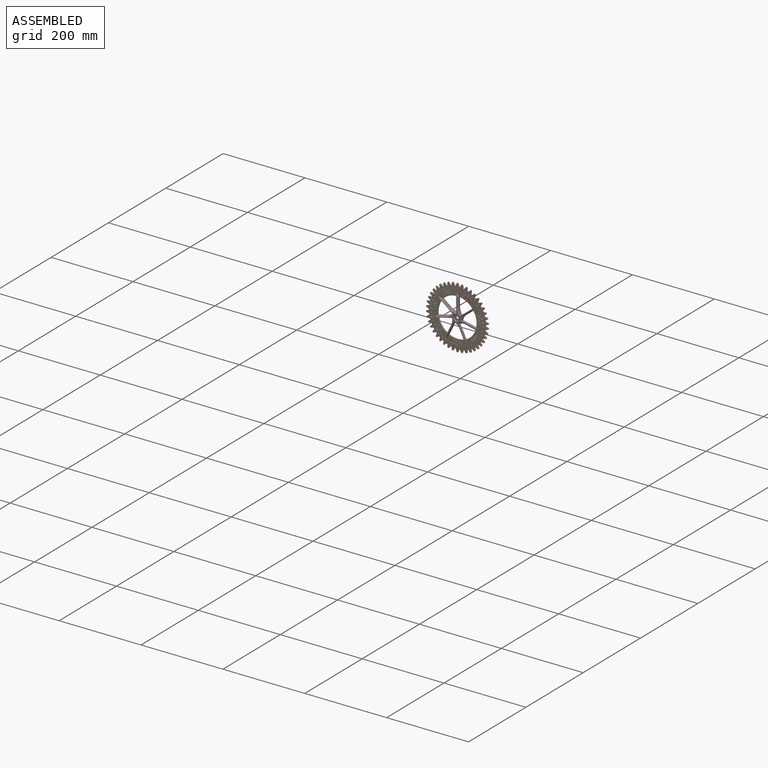
[diagram: assembled view]
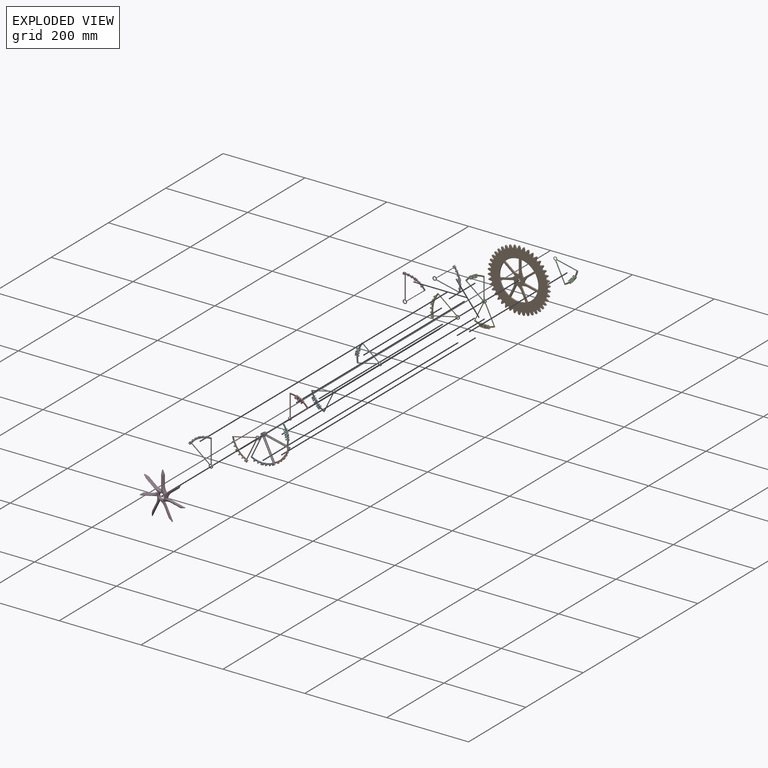
[diagram: exploded view]
GUIDED TOUR — MATED ASSEMBLY (Onshape document fc287e7eb0d89cf770b1b55a, AutoMate assembly fc287e7eb0d89cf770b1b55a_567d57d1a9eed2871b4e9d9c_7820a510bcdfb73ece721cb8_default)

This assembly has 16 components, labeled P0..P15 below (a component is one placed occurrence of a part; the same part can appear more than once), held together by 46 mates. A mate is a constraint between two components; its type names the relative motion it leaves free:
  CYLINDRICAL — leaves both rotation about and translation along the listed axis free,
  PLANAR — leaves sliding in the plane through the listed point (normal = the listed direction) and rotation about that normal free.
Axis/direction vectors are unit vectors and 'through' points are millimeter coordinates, both in the assembly's world frame.

MATES
  1. PLANAR "Planar 7": P0 <-> P1, direction (0.000, 1.000, 0.000) through (8.85, -20.75, -35.72) mm
  2. PLANAR "Planar 15": P7 <-> P1, direction (0.000, 1.000, 0.000) through (26.37, -20.75, 41.33) mm
  3. PLANAR "Planar 8": P0 <-> P1, direction (0.901, 0.000, 0.434) through (22.75, -21.55, -23.57) mm
  4. PLANAR "Planar 4": P14 <-> P1, direction (-0.624, 0.000, 0.782) through (34.08, -21.55, 26.15) mm
  5. PLANAR "Planar 21": P12 <-> P1, direction (0.000, 1.000, 0.000) through (-1.74, -20.75, -47.17) mm
  6. CYLINDRICAL "Cylindrical 4": P0 <-> P1, axis (0.000, -1.000, 0.000) through (8.58, -22.34, 5.81) mm
  7. PLANAR "Planar 29": P10 <-> P1, direction (-0.623, 0.000, -0.782) through (-15.39, -21.55, 24.89) mm
  8. PLANAR "Planar 32": P1 <-> P3, direction (0.901, 0.000, 0.434) through (21.68, -22.34, -21.36) mm
  9. PLANAR "Planar 26": P5 <-> P1, direction (0.000, 1.000, 0.000) through (-46.24, -20.75, 21.76) mm
  10. PLANAR "Planar 17": P13 <-> P1, direction (0.000, 1.000, 0.000) through (60.84, -20.75, 19.31) mm
  11. PLANAR "Planar 13": P9 <-> P1, direction (0.000, 1.000, 0.000) through (-23.71, -20.75, -20.30) mm
  12. PLANAR "Planar 5": P15 <-> P1, direction (0.000, 1.000, 0.000) through (44.83, -20.75, -46.52) mm
  13. PLANAR "Planar 16": P8 <-> P1, direction (0.000, 1.000, 0.000) through (-22.81, -20.75, -18.52) mm
  14. PLANAR "Planar 20": P2 <-> P1, direction (0.222, 0.000, 0.975) through (38.46, -21.55, -1.00) mm
  15. CYLINDRICAL "Cylindrical 14": P10 <-> P1, axis (0.000, -1.000, 0.000) through (8.58, -21.55, 5.81) mm
  16. CYLINDRICAL "Cylindrical 5": P6 <-> P1, axis (0.000, -1.000, 0.000) through (8.58, -21.55, 5.81) mm
  17. PLANAR "Planar 11": P4 <-> P1, direction (0.000, 1.000, 0.000) through (-53.99, -20.75, 17.59) mm
  18. CYLINDRICAL "Cylindrical 11": P12 <-> P1, axis (0.000, -1.000, 0.000) through (8.58, -21.55, 5.81) mm
  19. CYLINDRICAL "Cylindrical 7": P9 <-> P1, axis (0.000, -1.000, 0.000) through (8.58, -21.55, 5.81) mm
  20. PLANAR "Planar 18": P13 <-> P1, direction (-0.624, 0.000, 0.782) through (32.54, -21.55, 24.92) mm
  21. PLANAR "Planar 22": P12 <-> P1, direction (0.901, 0.000, 0.434) through (21.89, -21.55, -21.79) mm
  22. PLANAR "Planar 10": P6 <-> P1, direction (-0.623, 0.000, -0.782) through (-16.93, -21.55, 26.12) mm
  23. PLANAR "Planar 28": P10 <-> P1, direction (0.000, 1.000, 0.000) through (-16.75, -20.75, 53.47) mm
  24. CYLINDRICAL "Cylindrical 3": P15 <-> P1, axis (0.000, -1.000, 0.000) through (8.58, -21.55, 5.81) mm
  25. CYLINDRICAL "Cylindrical 9": P13 <-> P1, axis (0.000, -1.000, 0.000) through (8.58, -21.55, 5.81) mm
  26. CYLINDRICAL "Cylindrical 10": P2 <-> P1, axis (0.000, -1.000, 0.000) through (8.58, -22.34, 5.81) mm
  27. PLANAR "Planar 19": P2 <-> P1, direction (0.000, 1.000, 0.000) through (39.22, -20.75, -19.43) mm
  28. PLANAR "Planar 3": P14 <-> P1, direction (0.000, 1.000, 0.000) through (71.98, -20.75, 11.63) mm
  29. PLANAR "Planar 24": P7 <-> P1, direction (-1.000, 0.000, 0.000) through (8.58, -21.55, 36.39) mm
  30. PLANAR "Planar 25": P8 <-> P1, direction (0.901, 0.000, -0.433) through (-4.69, -21.55, -21.80) mm
  31. CYLINDRICAL "Cylindrical 12": P7 <-> P1, axis (0.000, -1.000, 0.000) through (8.58, -21.55, 5.81) mm
  32. PLANAR "Planar 2": P11 <-> P1, direction (-1.000, 0.000, 0.000) through (8.58, -21.55, 38.43) mm
  33. PLANAR "Planar 1": P11 <-> P1, direction (0.000, 1.000, 0.000) through (28.73, -20.75, 66.49) mm
  34. PLANAR "Planar 9": P6 <-> P1, direction (0.000, 1.000, 0.000) through (-37.61, -20.75, 44.61) mm
  35. PLANAR "Planar 14": P9 <-> P1, direction (0.901, 0.000, -0.433) through (-5.55, -21.55, -23.58) mm
  36. PLANAR "Planar 23": P7 <-> P1, direction (0.000, 1.000, 0.000) through (22.45, -20.75, 57.70) mm
  37. CYLINDRICAL "Cylindrical 13": P5 <-> P1, axis (0.000, -1.000, 0.000) through (8.58, -21.55, 5.81) mm
  38. CYLINDRICAL "Cylindrical 1": P11 <-> P1, axis (0.000, -1.000, 0.000) through (8.58, -21.55, 5.81) mm
  39. PLANAR "Planar 31": P1 <-> P3, direction (-0.624, 0.000, 0.782) through (32.16, -22.34, 24.62) mm
  40. PLANAR "Planar 12": P4 <-> P1, direction (0.223, 0.000, -0.975) through (-23.21, -21.55, -1.47) mm
  41. CYLINDRICAL "Cylindrical 2": P14 <-> P1, axis (0.000, -1.000, 0.000) through (8.58, -21.55, 5.81) mm
  42. PLANAR "Planar 30": P3 <-> P1, direction (0.000, 1.000, 0.000) through (8.95, -20.75, 5.56) mm
  43. CYLINDRICAL "Cylindrical 8": P8 <-> P1, axis (0.000, -1.000, 0.000) through (8.58, -22.34, 5.81) mm
  44. PLANAR "Planar 27": P5 <-> P1, direction (0.223, 0.000, -0.975) through (-21.28, -21.55, -1.03) mm
  45. CYLINDRICAL "Cylindrical 6": P4 <-> P1, axis (0.000, -1.000, 0.000) through (8.58, -22.34, 5.81) mm
  46. PLANAR "Planar 6": P15 <-> P1, direction (0.222, 0.000, 0.975) through (40.38, -21.55, -1.44) mm

ASSEMBLY ORDER
  1. P4 — the base component [order verified]
  2. P0 [order verified]
  3. P6 [order verified]
  4. P9 [order verified]
  5. P11 [order verified]
  6. P14 [order verified]
  7. P15 [order verified]
  8. P8 [order verified]
  9. P10 [order verified]
  10. P7 [order verified]
  11. P13 [order verified]
  12. P5 [order verified]
  13. P1 [order verified]
  14. P12 [order verified]
  15. P2 [order verified]
  16. P3 [order verified]
(P1, P2, P3, P6, P7, P8 verified with a relaxed clearance tolerance: the source model stores slight part interference there.)
Order-tag legend:
  [order verified] — this step's position reverses a verified removal order: the component was checked to insert without passing through the ones already placed.

Of the 16 components, 15 carry the full construction recipe — the FeatureScript program that regenerates the part's solid from scratch; the rest are supplied as boundary geometry only.
Because this assembly has more than 12 components, the tour below covers the 12 most significant ones individually (every recipe-attached component first, then the largest by part volume), in assembly order; the remaining 4 are summarized together in a grouped section at the end.
Each toured component is shown spotlighted twice — in the assembled view, then in the exploded view, where a leader line traces a displaced component back to its assembled socket (saturated green if recipe-attached, orange if geometry-only; every other component desaturated gray) — followed by its recipe or geometry summary and the mates that hold it.
NOTE — this tour is split across 2 documents so each fits a 32k-token context. This is document 1: the component sections continue in the remaining 1 document, each repeating the header above.
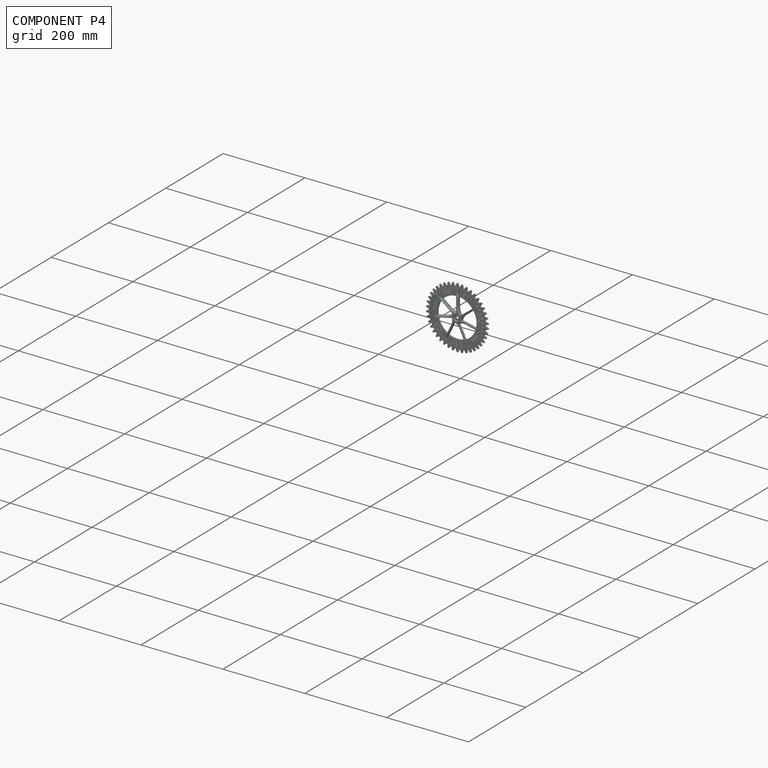
[diagram: component P4 — assembled]
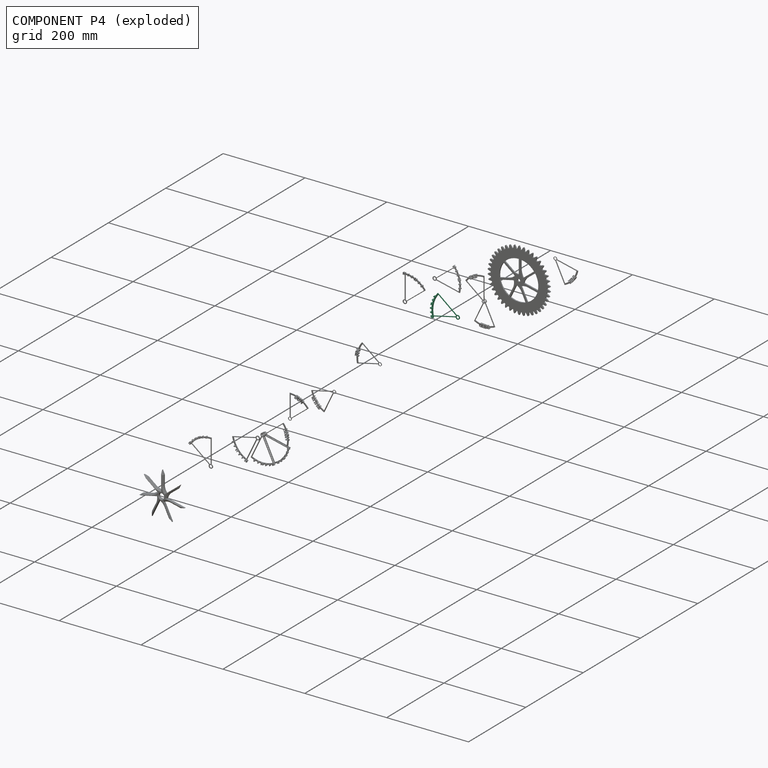
[diagram: component P4 — exploded]
COMPONENT P4 — same part as P0 (CADFS 00778292); its construction recipe is shown at P0.
Held by: PLANAR mate "Planar 11" to P1; PLANAR mate "Planar 12" to P1; CYLINDRICAL mate "Cylindrical 6" to P1.
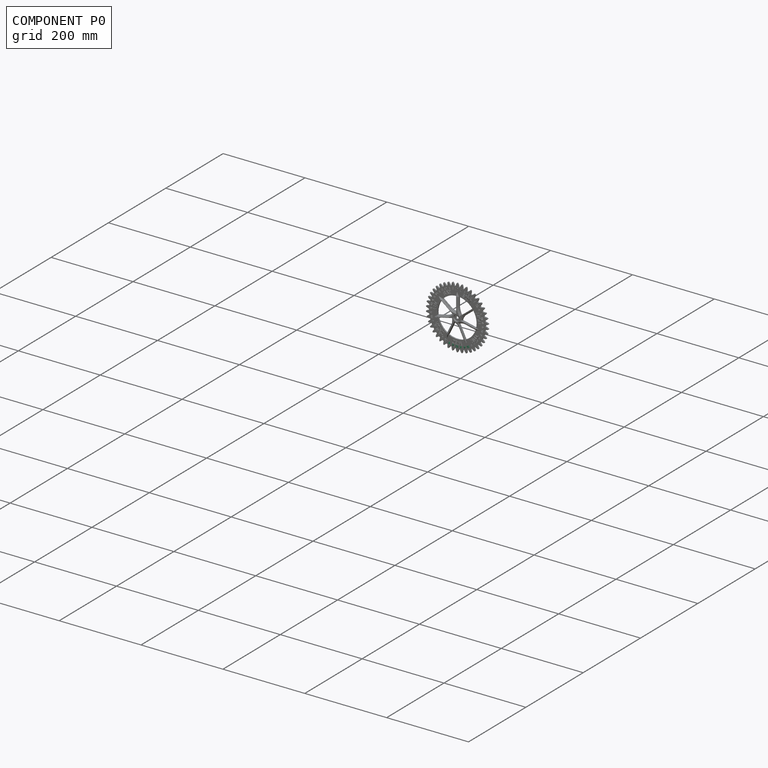
[diagram: component P0 — assembled]
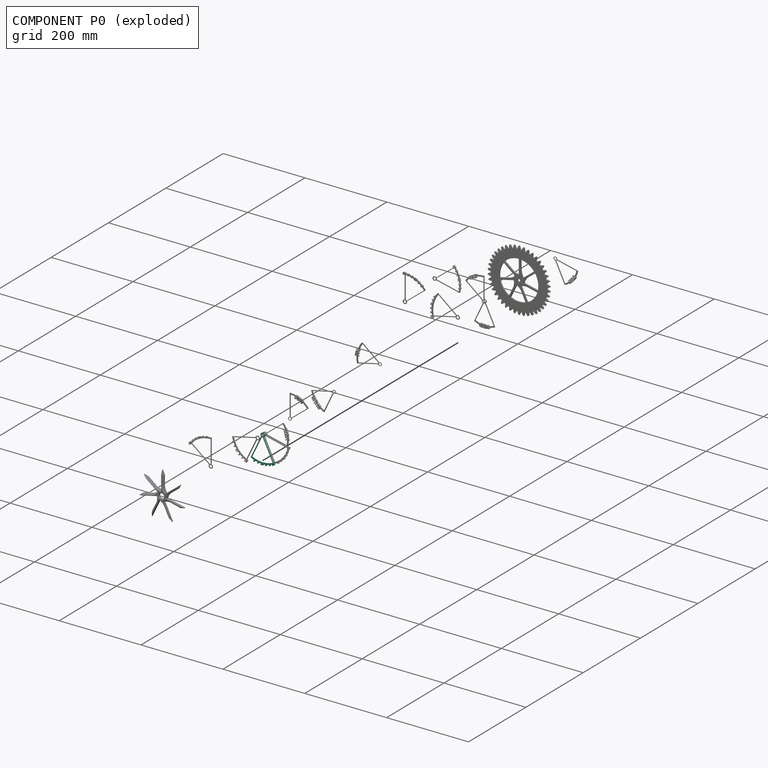
[diagram: component P0 — exploded]
COMPONENT P0 — recipe-attached (CADFS 00778292, mesh-verified: the recipe's output STEP matches this component's geometry to below the mesh-comparison resolution (tessellation chordal tolerance ~0.135 mm)).
Held by: PLANAR mate "Planar 7" to P1; PLANAR mate "Planar 8" to P1; CYLINDRICAL mate "Cylindrical 4" to P1.
Construction recipe (FeatureScript — the CAD program that rebuilds this solid; sketch coordinates are in the units given by the * unit suffixes, e.g. mm):

FeatureScript 1511;
import(path : "onshape/std/geometry.fs", version : "1511.0");
import(path : "onshape/std/common.fs", version : "1511.0");
const mm = millimeter;
const VERTEX = EntityType.VERTEX;
const EDGE = EntityType.EDGE;
const FACE = EntityType.FACE;
const BODY = EntityType.BODY;
function v(x, y){return vector(x, y);}
function OD(order){return orderDisambiguation(order);}
function OSD(set){return originalSetDisambiguation(set);}
function TD(topology){return topologyDisambiguation(topology);}
function TDD(query){return trueDependencyDisambiguation(query);}
function sQuery(a, b, c) {return sketchEntityQuery(a, b, c);}

annotation { "Feature Type Name" : "Feature", "Feature Type Description" : "" }
export const myFeature = defineFeature(function(context is Context, id is Id, definition is map)
    precondition{}
    {
        {
            var Q0;
            Q0=qCreatedBy(makeId("Front.planeOp"),FACE);
            var sketch = newSketch(context, id + "F0", { "sketchPlane" : qUnion([Q0])});
            skCircle(sketch, "E0", {"center": v(0, 0) * mm, "radius": 68.7 * mm, "construction": true});
            skCircle(sketch, "E1", {"center": v(0, 0) * mm, "radius": 65.53 * mm, "construction": true});
            skCircle(sketch, "E2", {"center": v(0, 0) * mm, "radius": 59.18 * mm, "construction": true});
            skLineSegment(sketch, "E3", {"start": v(0, 0) * mm, "end": v(0, 60.77) * mm, "construction": true});
            skLineSegment(sketch, "E4", {"start": v(0, 0) * mm, "end": v(9.77, 64.8) * mm, "construction": true});
            skLineSegment(sketch, "E5", {"start": v(0, 0) * mm, "end": v(19.31, 62.62) * mm, "construction": true});
            skLineSegment(sketch, "E6", {"start": v(0, 0) * mm, "end": v(28.43, 59.04) * mm, "construction": true});
            skLineSegment(sketch, "E7", {"start": v(0, 0) * mm, "end": v(36.91, 54.15) * mm, "construction": true});
            skLineSegment(sketch, "E8", {"start": v(0, 0) * mm, "end": v(44.57, 48.04) * mm, "construction": true});
            skText(sketch, "E9", { "text": "12", "fontName": "RobotoSlab-Bold.ttf"});
            skText(sketch, "E10", { "text": "4", "fontName": "RobotoSlab-Bold.ttf"});
            skText(sketch, "E11", { "text": "8", "fontName": "RobotoSlab-Bold.ttf"});
            skText(sketch, "E12", { "text": "12", "fontName": "RobotoSlab-Bold.ttf"});
            skText(sketch, "E13", { "text": "4", "fontName": "RobotoSlab-Bold.ttf"});
            skText(sketch, "E14", { "text": "8", "fontName": "RobotoSlab-Bold.ttf"});
            const initialGuessF0  = {"E9": [-0.00339, 0.06077, 1, 0, 0.00476], "E10": [0.0071, 0.06037, 0.98883, -0.14902, 0.00478], "E11": [0.01607, 0.05862, 0.95559, -0.2947, 0.00478], "E12": [0.0233, 0.05622, 0.901, -0.43382, 0.00478], "E13": [0.03258, 0.05132, 0.8263, -0.56324, 0.00478], "E14": [0.03991, 0.04585, 0.73314, -0.68008, 0.00478]};
            skSetInitialGuess(sketch, initialGuessF0);
            skSolve(sketch);
        }
        {
            var Q0;
            Q0 = qSketchRegion(id + "F0", true);
            extrude(context, id + "F1", {"entities" : qUnion([Q0]), "depth" : 4.76 * mm, "offsetDistance" : 25.4 * mm});
        }
        {
            var Q0;
            Q0=qCreatedBy(makeId("Front.planeOp"),FACE);
            var sketch = newSketch(context, id + "F2", { "sketchPlane" : qUnion([Q0])});
            skCircle(sketch, "E15", {"center": v(0, 0) * mm, "radius": 4.92 * mm});
            skCircle(sketch, "E16", {"center": v(0, 0) * mm, "radius": 63.5 * mm, "construction": true});
            skLineSegment(sketch, "E17", {"start": v(0, 0) * mm, "end": v(0, 60.3) * mm, "construction": true});
            skLineSegment(sketch, "E18", {"start": v(0, 0) * mm, "end": v(49.64, 39.6) * mm, "construction": true});
            skLineSegment(sketch, "E19", {"start": v(1.59, 63.48) * mm, "end": v(1.59, 4.66) * mm});
            skLineSegment(sketch, "E20", {"start": v(4.63, 1.66) * mm, "end": v(50.61, 38.35) * mm, "construction": true});
            skLineSegment(sketch, "E21", {"start": v(4.63, 1.66) * mm, "end": v(50.61, 38.35) * mm});
            skLineSegment(sketch, "E22", {"start": v(3.85, 3.07) * mm, "end": v(49.64, 39.6) * mm});
            skArc(sketch, "E23", {"start": v(47.16, 37.62) * mm, "mid": v(26.93, 54.1) * mm, "end": v(1.59, 60.3) * mm});
            skArc(sketch, "E24", {"start": v(50.61, 38.35) * mm, "mid": v(28.34, 57.02) * mm, "end": v(0, 63.5) * mm});
            skArc(sketch, "E25", {"start": v(0, 63.5) * mm, "mid": v(-0.97, 63.5) * mm, "end": v(-1.93, 63.47) * mm});
            skLineSegment(sketch, "E26", {"start": v(-1.93, 63.47) * mm, "end": v(-1.99, 60.3) * mm});
            skLineSegment(sketch, "E27", {"start": v(0, 4.92) * mm, "end": v(0, 60.3) * mm});
            skLineSegment(sketch, "E28", {"start": v(-1.99, 60.3) * mm, "end": v(0, 60.3) * mm});
            skSolve(sketch);
        }
        {
            var Q0;
            {var subQ5=sQuery(id+"F2.wireOp",EDGE,"E21");Q0=makeQuery(id+"F2.imprint","IMPRINT",FACE,{"disambiguationData":[TD([[makeQuery(id+"F2.imprint","IMPRINT",EDGE,{"derivedFrom":subQ5}),1.0]])]});}
            var Q1;
            {var subQ0=sQuery(id+"F2.wireOp",EDGE,"E15");var subQ1=makeQuery(id+"F2.imprint","INTERSECT",VERTEX,{"derivedFrom":[subQ0,sQuery(id+"F2.wireOp",EDGE,"E21")]});Q1=makeQuery(id+"F2.imprint","IMPRINT",FACE,{"disambiguationData":[TD([[makeQuery(id+"F2.imprint","IMPRINT",EDGE,{"disambiguationData":[TD([[subQ1,-1.0]])],"derivedFrom":subQ0}),1.0]])]});}
            extrude(context, id + "F3", {"entities" : qUnion([Q0, Q1]), "operationType" : NewBodyOperationType.ADD, "depth" : 1.59 * mm, "offsetDistance" : 25.4 * mm});
        }
        {
            var Q0;
            {var subQ0=sQuery(id+"F2.wireOp",EDGE,"E21");var subQ1=sQuery(id+"F2.wireOp",EDGE,"E19");var subQ2=sQuery(id+"F2.wireOp",EDGE,"E15");var subQ3=sQuery(id+"F2.wireOp",EDGE,"E27");var subQ4=sQuery(id+"F2.wireOp",EDGE,"E22");var subQ5=sQuery(id+"F2.wireOp",EDGE,"E25");var subQ6=sQuery(id+"F2.wireOp",EDGE,"E24");var subQ7=sQuery(id+"F2.wireOp",EDGE,"E23");var subQ8=sQuery(id+"F2.wireOp",EDGE,"E26");var subQ9=sQuery(id+"F2.wireOp",EDGE,"E28");Q0=makeQuery(id+"F3.boolean.opBoolean","SPLIT",FACE,{"disambiguationData":[TD([makeQuery(id+"F1.opExtrude","SWEPT_FACE",FACE,{"disambiguationData":[OSD([sQuery(id+"F0.wireOp",EDGE,"E9.sketch_text.stroke-5")])]})])],"derivedFrom":makeQuery(id+"F3.opExtrude","CAP_FACE",FACE,{"disambiguationData":[OSD([subQ2,subQ1,subQ0,subQ4,subQ7,subQ6,subQ5,subQ8,subQ3,subQ9])],"isStart":false})});}
            var sketch = newSketch(context, id + "F4", { "sketchPlane" : qUnion([Q0])});
            skPoint(sketch, "E29", {"position": v(0, 0) * mm});
            skPoint(sketch, "E30", {"position": v(0, 1.66) * mm});
            skSolve(sketch);
        }
        {
            var Q0;
            Q0=sQuery(id+"F4.wireOp",VERTEX,"E29");
            var Q1;
            Q1=makeQuery(id+"F1.opExtrude","SWEPT_BODY",BODY,{"disambiguationData":[OSD([sQuery(id+"F0.wireOp",EDGE,"E9.sketch_text.stroke-0"),sQuery(id+"F0.wireOp",EDGE,"E9.sketch_text.stroke-1"),sQuery(id+"F0.wireOp",EDGE,"E9.sketch_text.stroke-2"),sQuery(id+"F0.wireOp",EDGE,"E9.sketch_text.stroke-3"),sQuery(id+"F0.wireOp",EDGE,"E9.sketch_text.stroke-4"),sQuery(id+"F0.wireOp",EDGE,"E9.sketch_text.stroke-5"),sQuery(id+"F0.wireOp",EDGE,"E9.sketch_text.stroke-6"),sQuery(id+"F0.wireOp",EDGE,"E9.sketch_text.stroke-7"),sQuery(id+"F0.wireOp",EDGE,"E9.sketch_text.stroke-8"),sQuery(id+"F0.wireOp",EDGE,"E9.sketch_text.stroke-9")])]});
            hole(context, id + "F5", {"style" : HoleStyle.SIMPLE, "endStyle" : HoleEndStyle.THROUGH, "holeDiameter" : 6.35 * mm, "majorDiameter" : 6.35 * mm, "isTappedThrough" : true, "tappedDepth" : 12.7 * mm, "tapClearance" : 3, "locations" : qUnion([Q0]), "scope" : qUnion([Q1])});
        }
    });
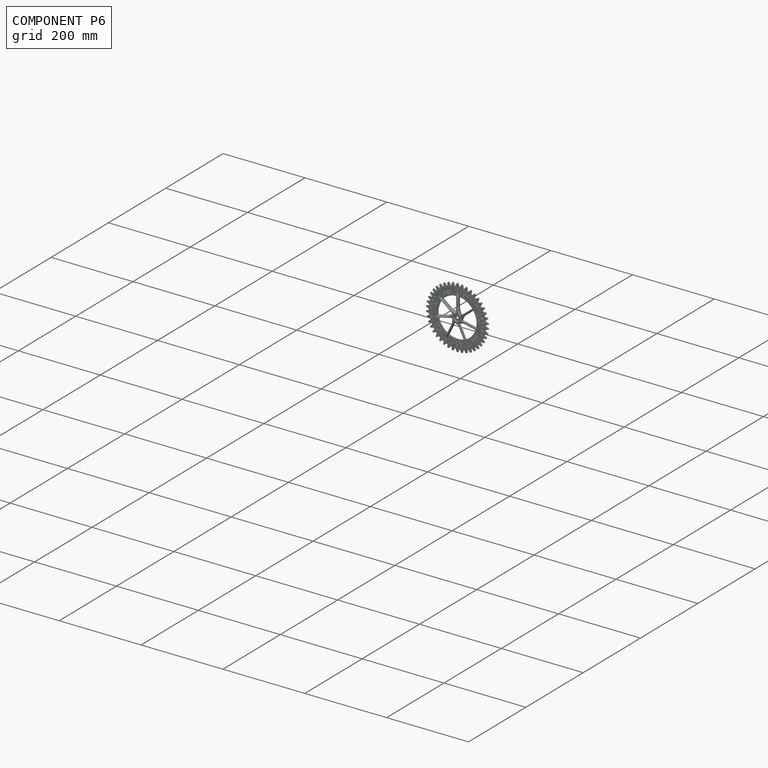
[diagram: component P6 — assembled]
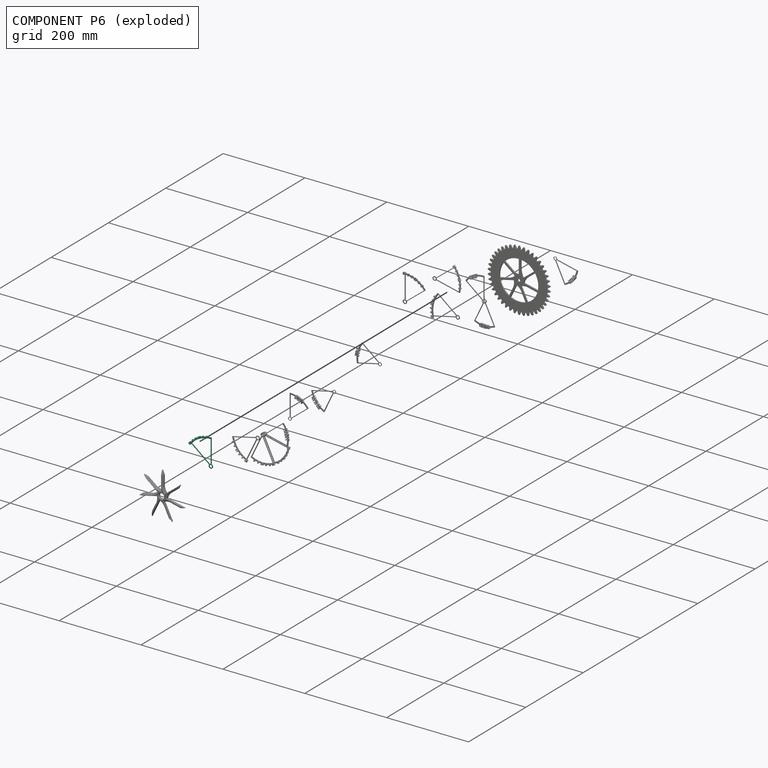
[diagram: component P6 — exploded]
COMPONENT P6 — same part as P0 (CADFS 00778292); its construction recipe is shown at P0.
Held by: CYLINDRICAL mate "Cylindrical 5" to P1; PLANAR mate "Planar 10" to P1; PLANAR mate "Planar 9" to P1.
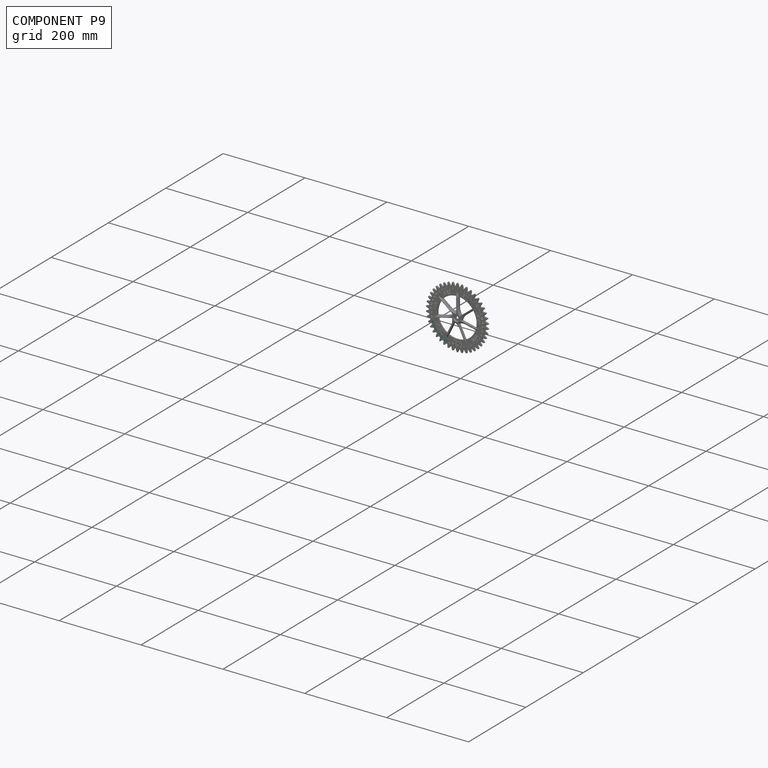
[diagram: component P9 — assembled]
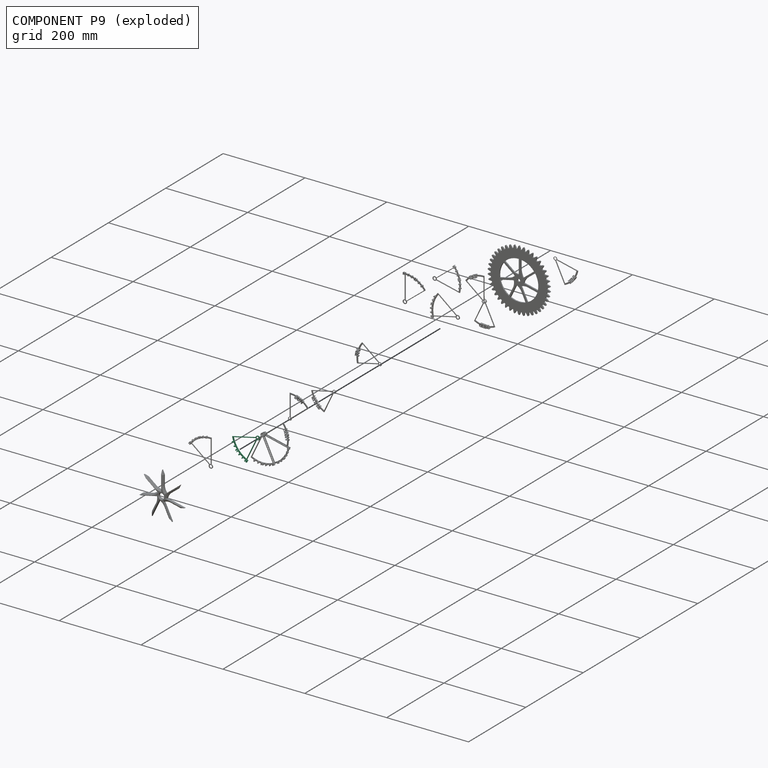
[diagram: component P9 — exploded]
COMPONENT P9 — same part as P0 (CADFS 00778292); its construction recipe is shown at P0.
Held by: PLANAR mate "Planar 13" to P1; CYLINDRICAL mate "Cylindrical 7" to P1; PLANAR mate "Planar 14" to P1.
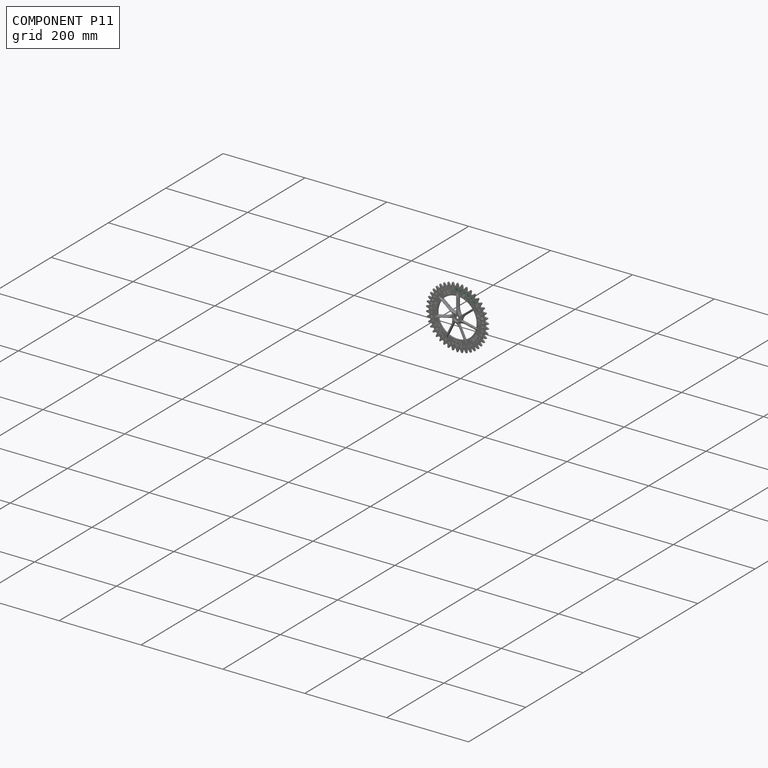
[diagram: component P11 — assembled]
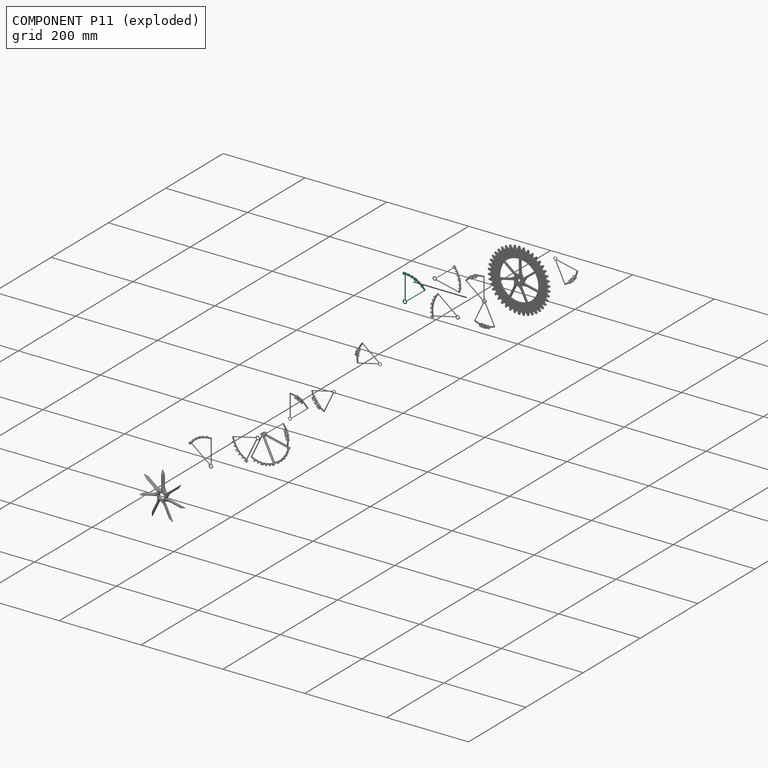
[diagram: component P11 — exploded]
COMPONENT P11 — same part as P0 (CADFS 00778292); its construction recipe is shown at P0.
Held by: PLANAR mate "Planar 2" to P1; PLANAR mate "Planar 1" to P1; CYLINDRICAL mate "Cylindrical 1" to P1.
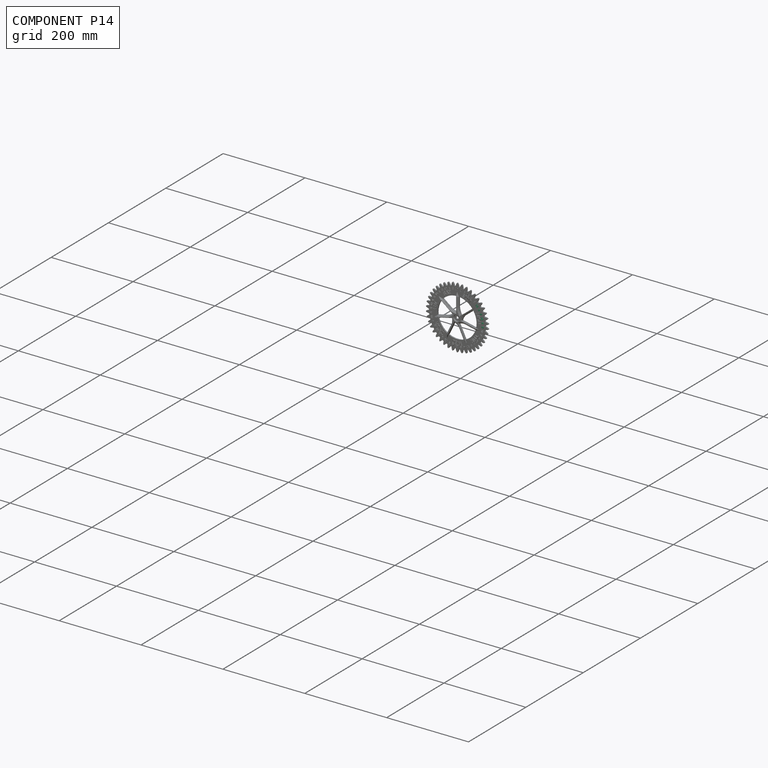
[diagram: component P14 — assembled]
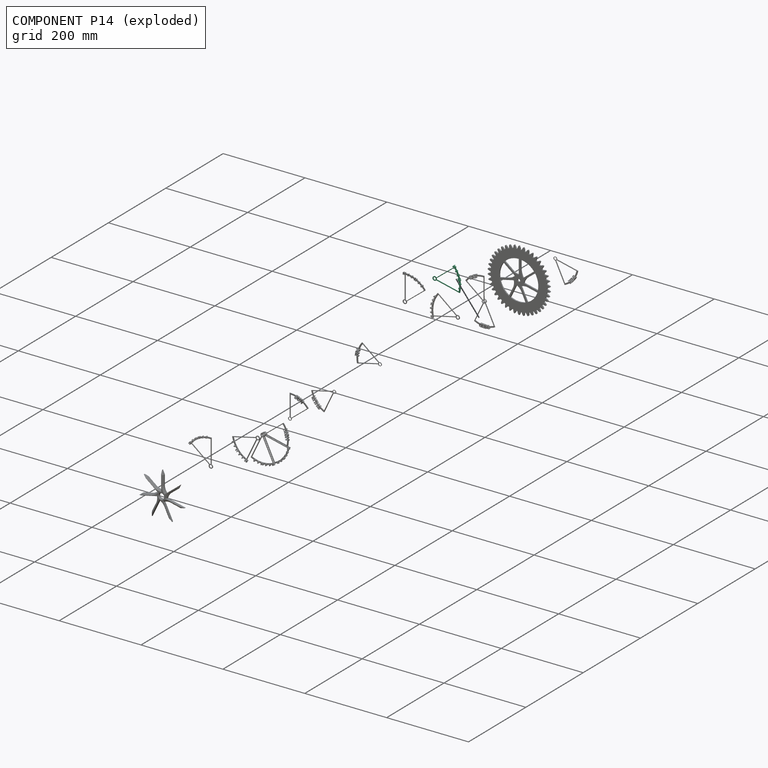
[diagram: component P14 — exploded]
COMPONENT P14 — same part as P0 (CADFS 00778292); its construction recipe is shown at P0.
Held by: PLANAR mate "Planar 4" to P1; PLANAR mate "Planar 3" to P1; CYLINDRICAL mate "Cylindrical 2" to P1.
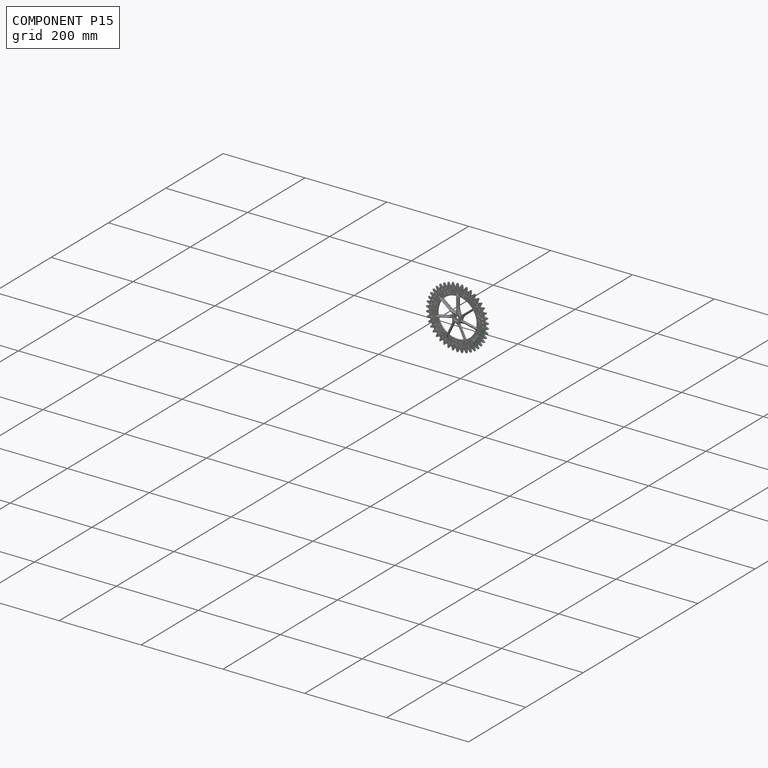
[diagram: component P15 — assembled]
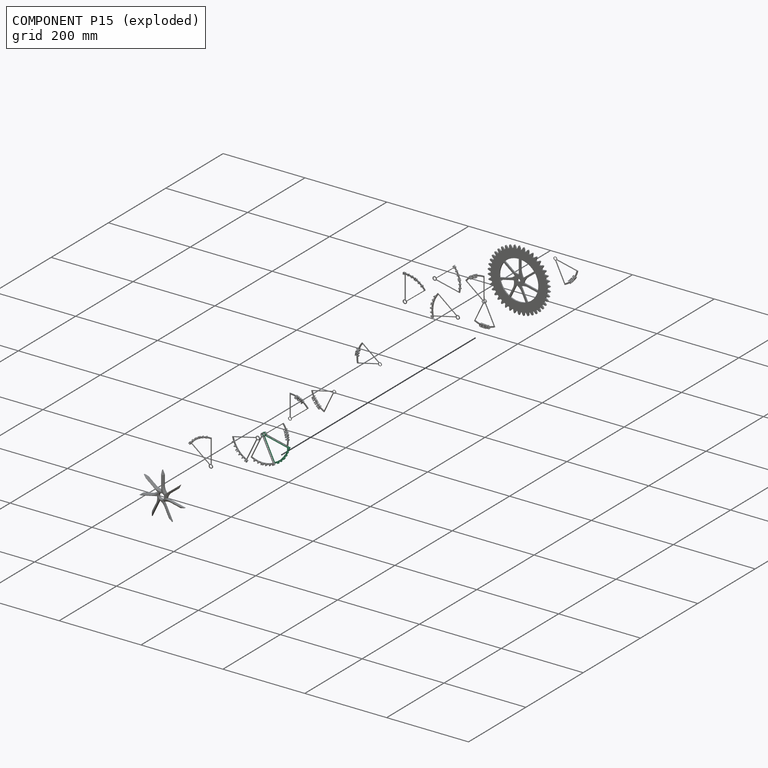
[diagram: component P15 — exploded]
COMPONENT P15 — same part as P0 (CADFS 00778292); its construction recipe is shown at P0.
Held by: PLANAR mate "Planar 5" to P1; CYLINDRICAL mate "Cylindrical 3" to P1; PLANAR mate "Planar 6" to P1.
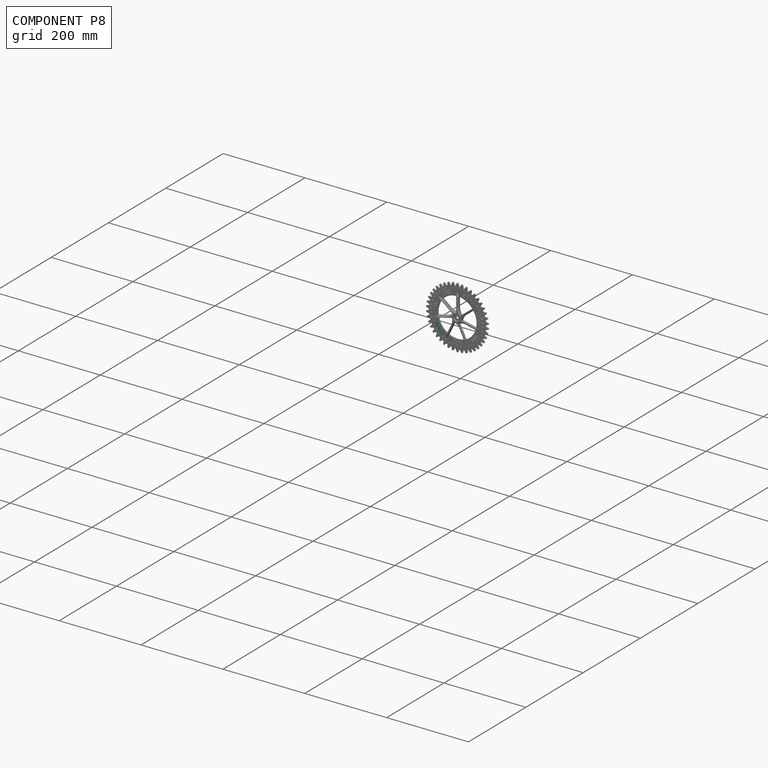
[diagram: component P8 — assembled]
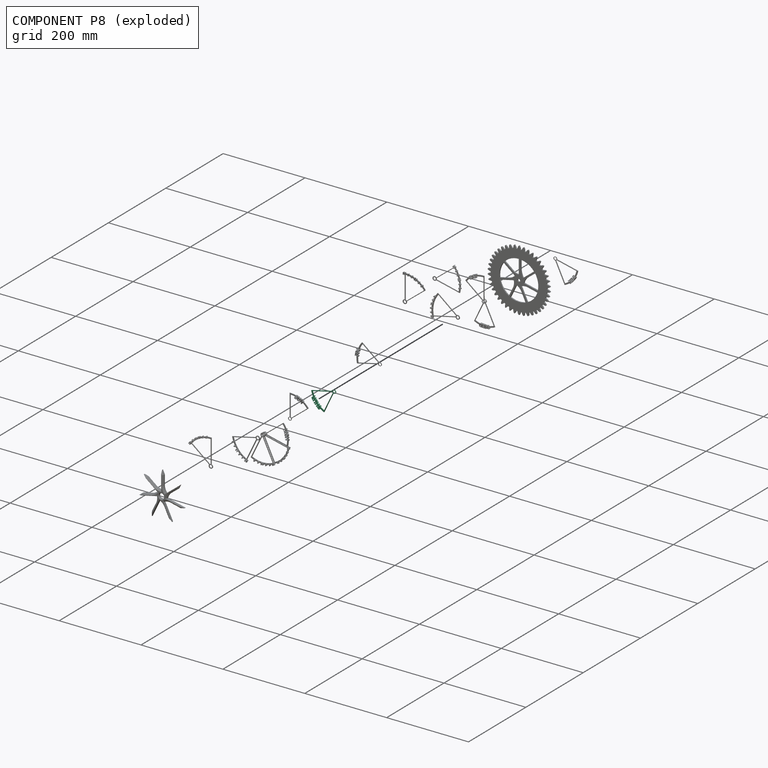
[diagram: component P8 — exploded]
COMPONENT P8 — recipe-attached (CADFS 00778299, mesh-verified: the recipe's output STEP matches this component's geometry to below the mesh-comparison resolution (tessellation chordal tolerance ~0.123 mm)).
Held by: PLANAR mate "Planar 16" to P1; PLANAR mate "Planar 25" to P1; CYLINDRICAL mate "Cylindrical 8" to P1.
Construction recipe (FeatureScript — the CAD program that rebuilds this solid; sketch coordinates are in the units given by the * unit suffixes, e.g. mm):

FeatureScript 1511;
import(path : "onshape/std/geometry.fs", version : "1511.0");
import(path : "onshape/std/common.fs", version : "1511.0");
const mm = millimeter;
const VERTEX = EntityType.VERTEX;
const EDGE = EntityType.EDGE;
const FACE = EntityType.FACE;
const BODY = EntityType.BODY;
function v(x, y){return vector(x, y);}
function OD(order){return orderDisambiguation(order);}
function OSD(set){return originalSetDisambiguation(set);}
function TD(topology){return topologyDisambiguation(topology);}
function TDD(query){return trueDependencyDisambiguation(query);}
function sQuery(a, b, c) {return sketchEntityQuery(a, b, c);}

annotation { "Feature Type Name" : "Feature", "Feature Type Description" : "" }
export const myFeature = defineFeature(function(context is Context, id is Id, definition is map)
    precondition{}
    {
        {
            var Q0;
            Q0=qCreatedBy(makeId("Front.planeOp"),FACE);
            var sketch = newSketch(context, id + "F0", { "sketchPlane" : qUnion([Q0])});
            skCircle(sketch, "E0", {"center": v(0, 0) * mm, "radius": 59.18 * mm, "construction": true});
            skCircle(sketch, "E1", {"center": v(0, 0) * mm, "radius": 50.8 * mm, "construction": true});
            skLineSegment(sketch, "E2", {"start": v(0, 0) * mm, "end": v(0, 59.18) * mm, "construction": true});
            skLineSegment(sketch, "E3", {"start": v(0, 0) * mm, "end": v(-25.65, -53.34) * mm, "construction": true});
            skLineSegment(sketch, "E4", {"start": v(0, 0) * mm, "end": v(-37.88, -45.47) * mm, "construction": true});
            skLineSegment(sketch, "E5", {"start": v(0, 0) * mm, "end": v(-43.5, -40.14) * mm, "construction": true});
            skLineSegment(sketch, "E6", {"start": v(0, 0) * mm, "end": v(-52.64, -27.05) * mm, "construction": true});
            skText(sketch, "E7", { "text": "T", "fontName": "RobotoSlab-Regular.ttf"});
            skText(sketch, "E8", { "text": "H", "fontName": "RobotoSlab-Regular.ttf"});
            skText(sketch, "E9", { "text": "R", "fontName": "RobotoSlab-Regular.ttf"});
            skLineSegment(sketch, "E10", {"start": v(0, 0) * mm, "end": v(-35.04, -47.84) * mm, "construction": true});
            skLineSegment(sketch, "E11", {"start": v(0, 0) * mm, "end": v(-54.42, -23.6) * mm, "construction": true});
            skLineSegment(sketch, "E12", {"start": v(0, 0) * mm, "end": v(-57.69, -13.21) * mm, "construction": true});
            skText(sketch, "E13", { "text": "U", "fontName": "RobotoSlab-Regular.ttf"});
            skLineSegment(sketch, "E14", {"start": v(0, 0) * mm, "end": v(-48.63, -33.73) * mm, "construction": true});
            const initialGuessF0  = {"E7": [-0.02996, -0.04174, -0.76832, 0.64007, 0.00794], "E8": [-0.0347, -0.03797, -0.6782, 0.73488, 0.00794], "E9": [-0.0438, -0.02689, -0.45715, 0.8894, 0.00794], "E13": [-0.03962, -0.03277, -0.57, 0.82165, 0.00795]};
            skSetInitialGuess(sketch, initialGuessF0);
            skSolve(sketch);
        }
        {
            var Q0;
            Q0=qSketchRegion(id+"F0",true);
            extrude(context, id + "F1", {"entities" : qUnion([Q0]), "depth" : 4.76 * mm, "offsetDistance" : 25.4 * mm});
        }
        {
            var Q0;
            Q0=qCreatedBy(makeId("Front.planeOp"),FACE);
            var sketch = newSketch(context, id + "F2", { "sketchPlane" : qUnion([Q0])});
            skCircle(sketch, "E15", {"center": v(0, 0) * mm, "radius": 57.15 * mm, "construction": true});
            skCircle(sketch, "E16", {"center": v(0, 0) * mm, "radius": 53.98 * mm, "construction": true});
            skCircle(sketch, "E17", {"center": v(0, 0) * mm, "radius": 4.13 * mm, "construction": true});
            skLineSegment(sketch, "E18", {"start": v(0, 0) * mm, "end": v(0, 57.15) * mm, "construction": true});
            skLineSegment(sketch, "E19", {"start": v(0, 0) * mm, "end": v(-24.77, -51.5) * mm, "construction": true});
            skLineSegment(sketch, "E20", {"start": v(0, 0) * mm, "end": v(-52.61, -12.05) * mm, "construction": true});
            skLineSegment(sketch, "E21", {"start": v(-24.81, -47.93) * mm, "end": v(-3.08, -2.75) * mm, "construction": true});
            skLineSegment(sketch, "E22", {"start": v(-56.04, -11.2) * mm, "end": v(-4.07, 0.7) * mm, "construction": true});
            skLineSegment(sketch, "E23", {"start": v(-52.61, -12.05) * mm, "end": v(-4.02, -0.92) * mm});
            skLineSegment(sketch, "E24", {"start": v(-24.81, -47.93) * mm, "end": v(-3.08, -2.75) * mm});
            skLineSegment(sketch, "E25", {"start": v(-24.77, -51.5) * mm, "end": v(-1.79, -3.72) * mm});
            skLineSegment(sketch, "E26", {"start": v(-56.04, -11.2) * mm, "end": v(-4.07, 0.7) * mm});
            skCircle(sketch, "E27", {"center": v(0, 0) * mm, "radius": 4.13 * mm});
            skArc(sketch, "E28", {"start": v(-52.61, -12.05) * mm, "mid": v(-42.69, -33.07) * mm, "end": v(-24.81, -47.93) * mm});
            skArc(sketch, "E29", {"start": v(-56.04, -11.2) * mm, "mid": v(-45, -34.92) * mm, "end": v(-24.77, -51.5) * mm});
            skSolve(sketch);
        }
        {
            var Q0;
            {var subQ3=sQuery(id+"F2.wireOp",EDGE,"E23");Q0=makeQuery(id+"F2.imprint","IMPRINT",FACE,{"disambiguationData":[TD([[makeQuery(id+"F2.imprint","IMPRINT",EDGE,{"derivedFrom":subQ3}),1.0]])]});}
            var Q1;
            {var subQ0=sQuery(id+"F2.wireOp",EDGE,"E27");var subQ1=makeQuery(id+"F2.imprint","INTERSECT",VERTEX,{"derivedFrom":[sQuery(id+"F2.wireOp",EDGE,"E23"),subQ0]});Q1=makeQuery(id+"F2.imprint","IMPRINT",FACE,{"disambiguationData":[TD([[makeQuery(id+"F2.imprint","IMPRINT",EDGE,{"disambiguationData":[TD([[subQ1,1.0]])],"derivedFrom":subQ0}),1.0]])]});}
            extrude(context, id + "F3", {"entities" : qUnion([Q0, Q1]), "operationType" : NewBodyOperationType.ADD, "depth" : 1.59 * mm, "offsetDistance" : 25.4 * mm});
        }
        {
            var Q0;
            {var subQ0=sQuery(id+"F2.wireOp",EDGE,"E26");var subQ1=sQuery(id+"F2.wireOp",EDGE,"E25");var subQ2=sQuery(id+"F2.wireOp",EDGE,"E24");var subQ3=sQuery(id+"F2.wireOp",EDGE,"E23");var subQ4=sQuery(id+"F2.wireOp",EDGE,"E28");var subQ5=sQuery(id+"F2.wireOp",EDGE,"E27");var subQ6=sQuery(id+"F2.wireOp",EDGE,"E29");Q0=makeQuery(id+"F3.boolean.opBoolean","SPLIT",FACE,{"disambiguationData":[TD([makeQuery(id+"F1.opExtrude","SWEPT_FACE",FACE,{"disambiguationData":[OSD([sQuery(id+"F0.wireOp",EDGE,"E7.sketch_text.stroke-10")])]})])],"derivedFrom":makeQuery(id+"F3.opExtrude","CAP_FACE",FACE,{"disambiguationData":[OSD([subQ3,subQ2,subQ1,subQ0,subQ5,subQ4,subQ6])],"isStart":false})});}
            var sketch = newSketch(context, id + "F4", { "sketchPlane" : qUnion([Q0])});
            skPoint(sketch, "E30", {"position": v(0, 0) * mm});
            skSolve(sketch);
        }
        {
            var Q0;
            Q0=sQuery(id+"F4.wireOp",VERTEX,"E30");
            var Q1;
            Q1=makeQuery(id+"F1.opExtrude","SWEPT_BODY",BODY,{"disambiguationData":[OSD([sQuery(id+"F0.wireOp",EDGE,"E7.sketch_text.stroke-0"),sQuery(id+"F0.wireOp",EDGE,"E7.sketch_text.stroke-1"),sQuery(id+"F0.wireOp",EDGE,"E7.sketch_text.stroke-2"),sQuery(id+"F0.wireOp",EDGE,"E7.sketch_text.stroke-3"),sQuery(id+"F0.wireOp",EDGE,"E7.sketch_text.stroke-4"),sQuery(id+"F0.wireOp",EDGE,"E7.sketch_text.stroke-5"),sQuery(id+"F0.wireOp",EDGE,"E7.sketch_text.stroke-6"),sQuery(id+"F0.wireOp",EDGE,"E7.sketch_text.stroke-7"),sQuery(id+"F0.wireOp",EDGE,"E7.sketch_text.stroke-8"),sQuery(id+"F0.wireOp",EDGE,"E7.sketch_text.stroke-9"),sQuery(id+"F0.wireOp",EDGE,"E7.sketch_text.stroke-10"),sQuery(id+"F0.wireOp",EDGE,"E7.sketch_text.stroke-11"),sQuery(id+"F0.wireOp",EDGE,"E7.sketch_text.stroke-12"),sQuery(id+"F0.wireOp",EDGE,"E7.sketch_text.stroke-13"),sQuery(id+"F0.wireOp",EDGE,"E7.sketch_text.stroke-14"),sQuery(id+"F0.wireOp",EDGE,"E7.sketch_text.stroke-15")])]});
            hole(context, id + "F5", {"style" : HoleStyle.SIMPLE, "endStyle" : HoleEndStyle.THROUGH, "holeDiameter" : 6.35 * mm, "majorDiameter" : 6.35 * mm, "isTappedThrough" : true, "tappedDepth" : 12.7 * mm, "tapClearance" : 3, "locations" : qUnion([Q0]), "scope" : qUnion([Q1])});
        }
    });
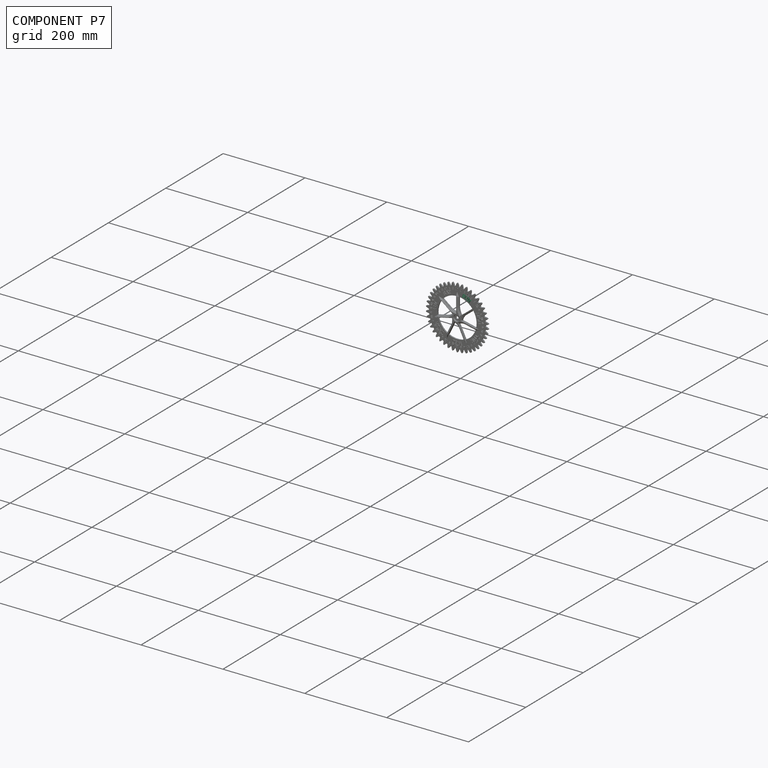
[diagram: component P7 — assembled]
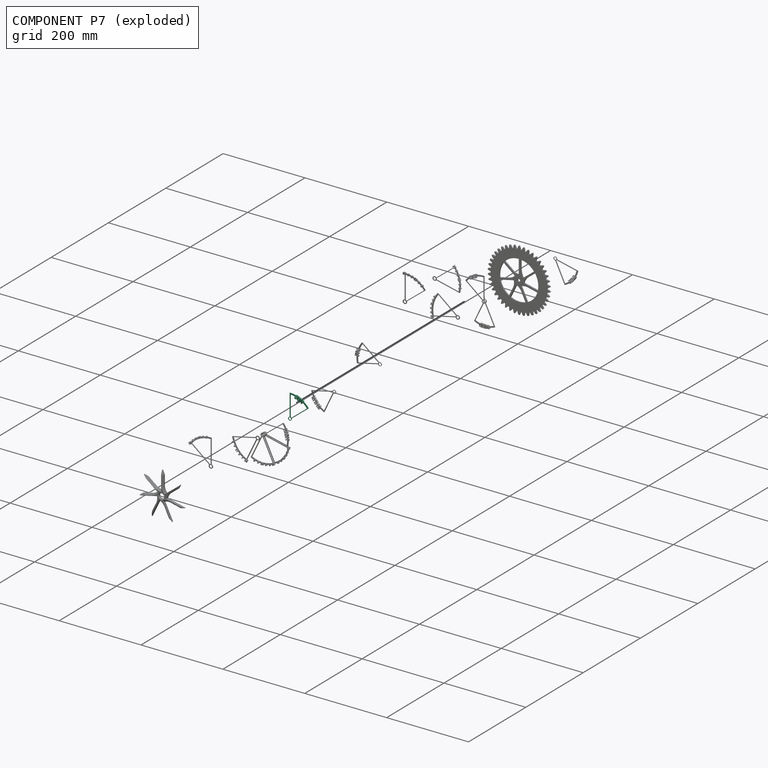
[diagram: component P7 — exploded]
COMPONENT P7 — recipe-attached (CADFS 00778293, mesh-verified: the recipe's output STEP matches this component's geometry to below the mesh-comparison resolution (tessellation chordal tolerance ~0.118 mm)).
Held by: PLANAR mate "Planar 15" to P1; PLANAR mate "Planar 24" to P1; CYLINDRICAL mate "Cylindrical 12" to P1; PLANAR mate "Planar 23" to P1.
Construction recipe (FeatureScript — the CAD program that rebuilds this solid; sketch coordinates are in the units given by the * unit suffixes, e.g. mm):

FeatureScript 1511;
import(path : "onshape/std/geometry.fs", version : "1511.0");
import(path : "onshape/std/common.fs", version : "1511.0");
const mm = millimeter;
const VERTEX = EntityType.VERTEX;
const EDGE = EntityType.EDGE;
const FACE = EntityType.FACE;
const BODY = EntityType.BODY;
function v(x, y){return vector(x, y);}
function OD(order){return orderDisambiguation(order);}
function OSD(set){return originalSetDisambiguation(set);}
function TD(topology){return topologyDisambiguation(topology);}
function TDD(query){return trueDependencyDisambiguation(query);}
function sQuery(a, b, c) {return sketchEntityQuery(a, b, c);}

annotation { "Feature Type Name" : "Feature", "Feature Type Description" : "" }
export const myFeature = defineFeature(function(context is Context, id is Id, definition is map)
    precondition{}
    {
        {
            var Q0;
            Q0=qCreatedBy(makeId("Front.planeOp"),FACE);
            var sketch = newSketch(context, id + "F0", { "sketchPlane" : qUnion([Q0])});
            skCircle(sketch, "E0", {"center": v(0, 0) * mm, "radius": 59.18 * mm, "construction": true});
            skCircle(sketch, "E1", {"center": v(0, 0) * mm, "radius": 50.8 * mm, "construction": true});
            skLineSegment(sketch, "E2", {"start": v(0, 0) * mm, "end": v(0, 59.18) * mm, "construction": true});
            skLineSegment(sketch, "E3", {"start": v(0, 0) * mm, "end": v(46.26, 36.9) * mm, "construction": true});
            skLineSegment(sketch, "E4", {"start": v(0, 0) * mm, "end": v(17.8, 56.44) * mm, "construction": true});
            skLineSegment(sketch, "E5", {"start": v(0, 0) * mm, "end": v(25.02, 53.63) * mm, "construction": true});
            skLineSegment(sketch, "E6", {"start": v(0, 0) * mm, "end": v(32.24, 49.63) * mm, "construction": true});
            skText(sketch, "E7", { "text": "S", "fontName": "RobotoSlab-Regular.ttf"});
            skText(sketch, "E8", { "text": "U", "fontName": "RobotoSlab-Regular.ttf"});
            skText(sketch, "E9", { "text": "N", "fontName": "RobotoSlab-Regular.ttf"});
            skLineSegment(sketch, "E10", {"start": v(0, 0) * mm, "end": v(14.53, 57.47) * mm, "construction": true});
            skLineSegment(sketch, "E11", {"start": v(0, 0) * mm, "end": v(35.9, 47.25) * mm, "construction": true});
            const initialGuessF0  = {"E7": [0.01214, 0.0499, 0.95366, -0.30089, 0.00794], "E8": [0.01774, 0.04827, 0.90623, -0.4228, 0.00794], "E9": [0.02425, 0.04535, 0.83857, -0.5448, 0.00794]};
            skSetInitialGuess(sketch, initialGuessF0);
            skSolve(sketch);
        }
        {
            var Q0;
            Q0 = qSketchRegion(id + "F0", true);
            extrude(context, id + "F1", {"entities" : qUnion([Q0]), "depth" : 4.76 * mm, "offsetDistance" : 25.4 * mm});
        }
        {
            var Q0;
            Q0=qCreatedBy(makeId("Front.planeOp"),FACE);
            var sketch = newSketch(context, id + "F2", { "sketchPlane" : qUnion([Q0])});
            skCircle(sketch, "E12", {"center": v(0, 0) * mm, "radius": 4.13 * mm, "construction": true});
            skCircle(sketch, "E13", {"center": v(0, 0) * mm, "radius": 4.02 * mm});
            skCircle(sketch, "E14", {"center": v(0, 0) * mm, "radius": 57.15 * mm, "construction": true});
            skCircle(sketch, "E15", {"center": v(0, 0) * mm, "radius": 53.98 * mm, "construction": true});
            skLineSegment(sketch, "E16", {"start": v(0, 0) * mm, "end": v(0, 57.15) * mm, "construction": true});
            skLineSegment(sketch, "E17", {"start": v(0, 0) * mm, "end": v(42.2, 33.66) * mm, "construction": true});
            skLineSegment(sketch, "E18", {"start": v(1.59, 53.95) * mm, "end": v(1.59, 3.7) * mm, "construction": true});
            skLineSegment(sketch, "E19", {"start": v(45.65, 34.38) * mm, "end": v(3.88, 1.06) * mm, "construction": true});
            skLineSegment(sketch, "E20", {"start": v(0, 57.15) * mm, "end": v(0, 0) * mm});
            skLineSegment(sketch, "E21", {"start": v(42.2, 33.66) * mm, "end": v(0, 0) * mm});
            skLineSegment(sketch, "E22", {"start": v(45.65, 34.38) * mm, "end": v(3.88, 1.06) * mm});
            skLineSegment(sketch, "E23", {"start": v(1.59, 53.95) * mm, "end": v(1.59, 3.7) * mm});
            skArc(sketch, "E24", {"start": v(42.2, 33.66) * mm, "mid": v(24.16, 48.35) * mm, "end": v(1.59, 53.95) * mm});
            skArc(sketch, "E25", {"start": v(45.65, 34.38) * mm, "mid": v(25.53, 51.2) * mm, "end": v(0, 57.15) * mm});
            skSolve(sketch);
        }
        {
            var Q0;
            {var subQ0=sQuery(id+"F2.wireOp",EDGE,"E22");Q0=makeQuery(id+"F2.imprint","IMPRINT",FACE,{"disambiguationData":[TD([[makeQuery(id+"F2.imprint","IMPRINT",EDGE,{"derivedFrom":subQ0}),-1.0]])]});}
            var Q1;
            {var subQ0=sQuery(id+"F2.wireOp",EDGE,"E21");var subQ1=sQuery(id+"F2.wireOp",EDGE,"E20");var subQ2=makeQuery(id+"F2.imprint","INTERSECT",VERTEX,{"derivedFrom":[subQ1,subQ0]});Q1=makeQuery(id+"F2.imprint","IMPRINT",FACE,{"disambiguationData":[TD([[makeQuery(id+"F2.imprint","IMPRINT",EDGE,{"disambiguationData":[TD([[subQ2,1.0]])],"derivedFrom":subQ1}),-1.0]])]});}
            var Q2;
            {var subQ0=sQuery(id+"F2.wireOp",EDGE,"E21");var subQ1=sQuery(id+"F2.wireOp",EDGE,"E20");var subQ2=makeQuery(id+"F2.imprint","INTERSECT",VERTEX,{"derivedFrom":[subQ1,subQ0]});Q2=makeQuery(id+"F2.imprint","IMPRINT",FACE,{"disambiguationData":[TD([[makeQuery(id+"F2.imprint","IMPRINT",EDGE,{"disambiguationData":[TD([[subQ2,1.0]])],"derivedFrom":subQ1}),1.0]])]});}
            extrude(context, id + "F3", {"entities" : qUnion([Q0, Q1, Q2]), "operationType" : NewBodyOperationType.ADD, "depth" : 1.59 * mm, "offsetDistance" : 25.4 * mm});
        }
        {
            var Q0;
            {var subQ0=sQuery(id+"F2.wireOp",EDGE,"E23");var subQ1=sQuery(id+"F2.wireOp",EDGE,"E22");var subQ2=sQuery(id+"F2.wireOp",EDGE,"E20");var subQ3=sQuery(id+"F2.wireOp",EDGE,"E21");var subQ4=sQuery(id+"F2.wireOp",EDGE,"E13");var subQ5=sQuery(id+"F2.wireOp",EDGE,"E24");var subQ6=sQuery(id+"F2.wireOp",EDGE,"E25");Q0=makeQuery(id+"F3.boolean.opBoolean","SPLIT",FACE,{"disambiguationData":[TD([makeQuery(id+"F1.opExtrude","SWEPT_FACE",FACE,{"disambiguationData":[OSD([sQuery(id+"F0.wireOp",EDGE,"E7.sketch_text.stroke-21")])]})])],"derivedFrom":makeQuery(id+"F3.opExtrude","CAP_FACE",FACE,{"disambiguationData":[OSD([subQ2,subQ3,subQ1,subQ0,subQ4,subQ5,subQ6])],"isStart":false})});}
            var sketch = newSketch(context, id + "F4", { "sketchPlane" : qUnion([Q0])});
            skPoint(sketch, "E26", {"position": v(0, 0) * mm});
            skSolve(sketch);
        }
        {
            var Q0;
            Q0=sQuery(id+"F4.wireOp",VERTEX,"E26");
            var Q1;
            Q1=makeQuery(id+"F1.opExtrude","SWEPT_BODY",BODY,{"disambiguationData":[OSD([sQuery(id+"F0.wireOp",EDGE,"E7.sketch_text.stroke-0"),sQuery(id+"F0.wireOp",EDGE,"E7.sketch_text.stroke-1"),sQuery(id+"F0.wireOp",EDGE,"E7.sketch_text.stroke-2"),sQuery(id+"F0.wireOp",EDGE,"E7.sketch_text.stroke-3"),sQuery(id+"F0.wireOp",EDGE,"E7.sketch_text.stroke-4"),sQuery(id+"F0.wireOp",EDGE,"E7.sketch_text.stroke-5"),sQuery(id+"F0.wireOp",EDGE,"E7.sketch_text.stroke-6"),sQuery(id+"F0.wireOp",EDGE,"E7.sketch_text.stroke-7"),sQuery(id+"F0.wireOp",EDGE,"E7.sketch_text.stroke-8"),sQuery(id+"F0.wireOp",EDGE,"E7.sketch_text.stroke-9"),sQuery(id+"F0.wireOp",EDGE,"E7.sketch_text.stroke-10"),sQuery(id+"F0.wireOp",EDGE,"E7.sketch_text.stroke-11"),sQuery(id+"F0.wireOp",EDGE,"E7.sketch_text.stroke-12"),sQuery(id+"F0.wireOp",EDGE,"E7.sketch_text.stroke-13"),sQuery(id+"F0.wireOp",EDGE,"E7.sketch_text.stroke-14"),sQuery(id+"F0.wireOp",EDGE,"E7.sketch_text.stroke-15"),sQuery(id+"F0.wireOp",EDGE,"E7.sketch_text.stroke-16"),sQuery(id+"F0.wireOp",EDGE,"E7.sketch_text.stroke-17"),sQuery(id+"F0.wireOp",EDGE,"E7.sketch_text.stroke-18"),sQuery(id+"F0.wireOp",EDGE,"E7.sketch_text.stroke-19"),sQuery(id+"F0.wireOp",EDGE,"E7.sketch_text.stroke-20"),sQuery(id+"F0.wireOp",EDGE,"E7.sketch_text.stroke-21"),sQuery(id+"F0.wireOp",EDGE,"E7.sketch_text.stroke-22"),sQuery(id+"F0.wireOp",EDGE,"E7.sketch_text.stroke-23"),sQuery(id+"F0.wireOp",EDGE,"E7.sketch_text.stroke-24"),sQuery(id+"F0.wireOp",EDGE,"E7.sketch_text.stroke-25"),sQuery(id+"F0.wireOp",EDGE,"E7.sketch_text.stroke-26"),sQuery(id+"F0.wireOp",EDGE,"E7.sketch_text.stroke-27"),sQuery(id+"F0.wireOp",EDGE,"E7.sketch_text.stroke-28"),sQuery(id+"F0.wireOp",EDGE,"E7.sketch_text.stroke-29")])]});
            hole(context, id + "F5", {"style" : HoleStyle.SIMPLE, "endStyle" : HoleEndStyle.THROUGH, "holeDiameter" : 6.35 * mm, "majorDiameter" : 6.35 * mm, "isTappedThrough" : true, "tappedDepth" : 12.7 * mm, "tapClearance" : 3, "locations" : qUnion([Q0]), "scope" : qUnion([Q1])});
        }
    });
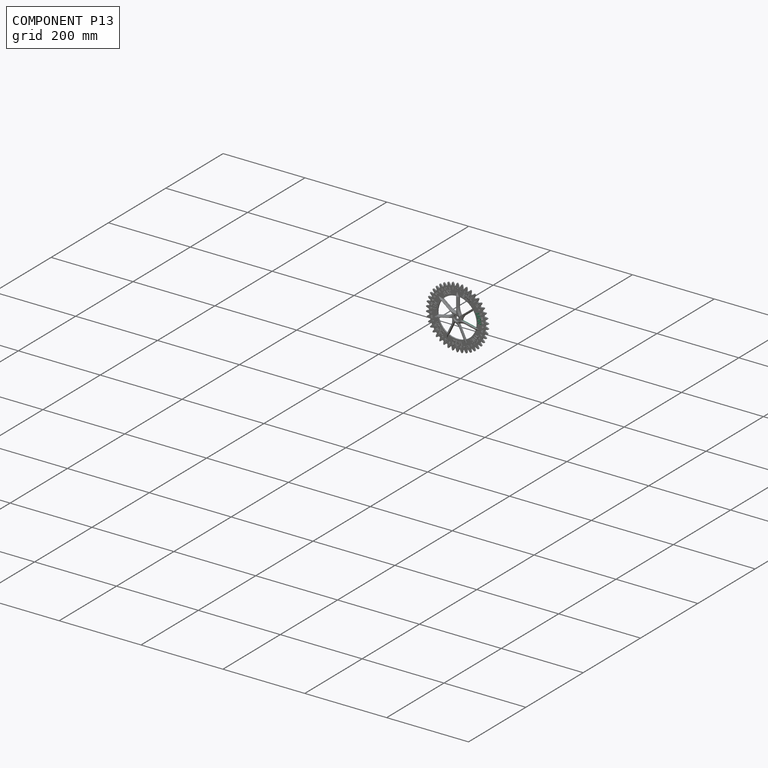
[diagram: component P13 — assembled]
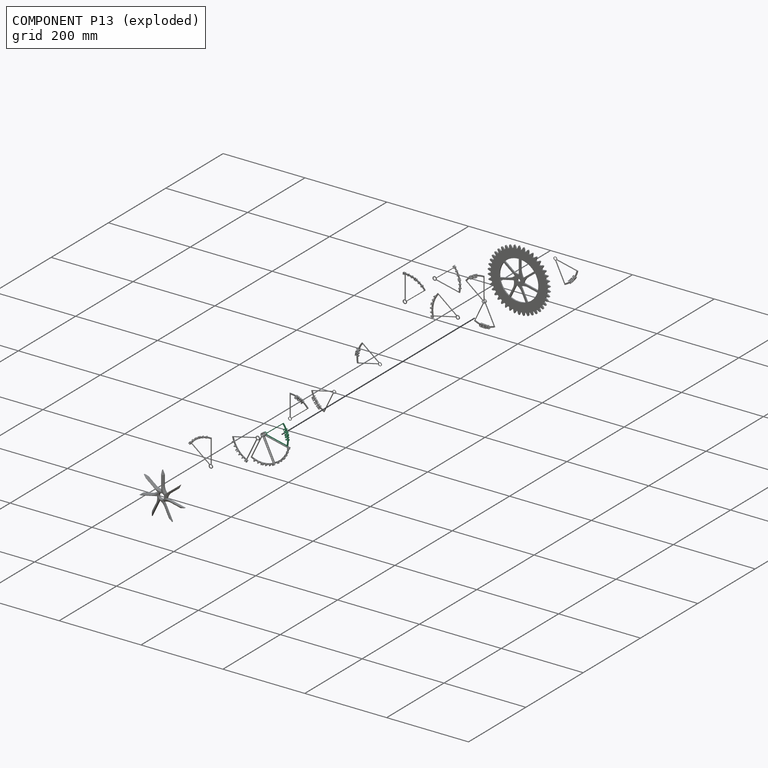
[diagram: component P13 — exploded]
COMPONENT P13 — recipe-attached (CADFS 00778294, mesh-verified: the recipe's output STEP matches this component's geometry to below the mesh-comparison resolution (tessellation chordal tolerance ~0.121 mm)).
Held by: PLANAR mate "Planar 17" to P1; PLANAR mate "Planar 18" to P1; CYLINDRICAL mate "Cylindrical 9" to P1.
Construction recipe (FeatureScript — the CAD program that rebuilds this solid; sketch coordinates are in the units given by the * unit suffixes, e.g. mm):

FeatureScript 1511;
import(path : "onshape/std/geometry.fs", version : "1511.0");
import(path : "onshape/std/common.fs", version : "1511.0");
const mm = millimeter;
const VERTEX = EntityType.VERTEX;
const EDGE = EntityType.EDGE;
const FACE = EntityType.FACE;
const BODY = EntityType.BODY;
function v(x, y){return vector(x, y);}
function OD(order){return orderDisambiguation(order);}
function OSD(set){return originalSetDisambiguation(set);}
function TD(topology){return topologyDisambiguation(topology);}
function TDD(query){return trueDependencyDisambiguation(query);}
function sQuery(a, b, c) {return sketchEntityQuery(a, b, c);}

annotation { "Feature Type Name" : "Feature", "Feature Type Description" : "" }
export const myFeature = defineFeature(function(context is Context, id is Id, definition is map)
    precondition{}
    {
        {
            var Q0;
            Q0=qCreatedBy(makeId("Front.planeOp"),FACE);
            var sketch = newSketch(context, id + "F0", { "sketchPlane" : qUnion([Q0])});
            skCircle(sketch, "E0", {"center": v(0, 0) * mm, "radius": 59.18 * mm, "construction": true});
            skCircle(sketch, "E1", {"center": v(0, 0) * mm, "radius": 50.8 * mm, "construction": true});
            skLineSegment(sketch, "E2", {"start": v(0, 0) * mm, "end": v(0, 59.18) * mm, "construction": true});
            skLineSegment(sketch, "E3", {"start": v(0, 0) * mm, "end": v(46.26, 36.9) * mm, "construction": true});
            skLineSegment(sketch, "E4", {"start": v(0, 0) * mm, "end": v(55.28, 21.14) * mm, "construction": true});
            skLineSegment(sketch, "E5", {"start": v(0, 0) * mm, "end": v(57.9, 12.24) * mm, "construction": true});
            skLineSegment(sketch, "E6", {"start": v(0, 0) * mm, "end": v(59.04, 4.06) * mm, "construction": true});
            skText(sketch, "E7", { "text": "M", "fontName": "RobotoSlab-Regular.ttf"});
            skText(sketch, "E8", { "text": "O", "fontName": "RobotoSlab-Regular.ttf"});
            skText(sketch, "E9", { "text": "N", "fontName": "RobotoSlab-Regular.ttf"});
            skLineSegment(sketch, "E10", {"start": v(0, 0) * mm, "end": v(53.39, 26.08) * mm, "construction": true});
            skLineSegment(sketch, "E11", {"start": v(0, 0) * mm, "end": v(59.34, -0.3) * mm, "construction": true});
            skLineSegment(sketch, "E12", {"start": v(0, 0) * mm, "end": v(57.7, -13.15) * mm, "construction": true});
            const initialGuessF0  = {"E7": [0.04598, 0.02324, 0.35727, -0.934, 0.00794], "E8": [0.0493, 0.01453, 0.20676, -0.9784, 0.00794], "E9": [0.05082, 0.00788, 0.06859, -0.99765, 0.00794]};
            skSetInitialGuess(sketch, initialGuessF0);
            skSolve(sketch);
        }
        {
            var Q0;
            Q0=qSketchRegion(id+"F0",true);
            extrude(context, id + "F1", {"entities" : qUnion([Q0]), "depth" : 4.76 * mm, "offsetDistance" : 25.4 * mm});
        }
        {
            var Q0;
            Q0=qCreatedBy(makeId("Front.planeOp"),FACE);
            var sketch = newSketch(context, id + "F2", { "sketchPlane" : qUnion([Q0])});
            skCircle(sketch, "E13", {"center": v(0, 0) * mm, "radius": 4.13 * mm, "construction": true});
            skCircle(sketch, "E14", {"center": v(0, 0) * mm, "radius": 57.15 * mm, "construction": true});
            skCircle(sketch, "E15", {"center": v(0, 0) * mm, "radius": 53.98 * mm, "construction": true});
            skLineSegment(sketch, "E16", {"start": v(0, 0) * mm, "end": v(0, 57.15) * mm, "construction": true});
            skLineSegment(sketch, "E17", {"start": v(44.68, 35.64) * mm, "end": v(0, 0) * mm, "construction": true});
            skLineSegment(sketch, "E18", {"start": v(43.17, 32.4) * mm, "end": v(3.97, 1.13) * mm, "construction": true});
            skLineSegment(sketch, "E19", {"start": v(55.35, -14.24) * mm, "end": v(3.36, -2.4) * mm, "construction": true});
            skCircle(sketch, "E20", {"center": v(0, 0) * mm, "radius": 4.13 * mm});
            skLineSegment(sketch, "E21", {"start": v(44.68, 35.64) * mm, "end": v(3.23, 2.57) * mm});
            skLineSegment(sketch, "E22", {"start": v(43.17, 32.4) * mm, "end": v(3.97, 1.13) * mm});
            skLineSegment(sketch, "E23", {"start": v(55.35, -14.24) * mm, "end": v(3.36, -2.4) * mm});
            skArc(sketch, "E24", {"start": v(55.35, -14.24) * mm, "mid": v(55.9, 11.96) * mm, "end": v(44.68, 35.64) * mm});
            skArc(sketch, "E25", {"start": v(52.63, -12) * mm, "mid": v(52.79, 11.25) * mm, "end": v(43.17, 32.4) * mm});
            skLineSegment(sketch, "E26", {"start": v(0.13, 0.03) * mm, "end": v(52.64, -11.94) * mm, "construction": true});
            skLineSegment(sketch, "E27", {"start": v(4.04, -0.86) * mm, "end": v(52.64, -11.94) * mm});
            skSolve(sketch);
        }
        {
            var Q0;
            {var subQ0=sQuery(id+"F2.wireOp",EDGE,"E21");Q0=makeQuery(id+"F2.imprint","IMPRINT",FACE,{"disambiguationData":[TD([[makeQuery(id+"F2.imprint","IMPRINT",EDGE,{"derivedFrom":subQ0}),1.0]])]});}
            var Q1;
            {var subQ0=sQuery(id+"F2.wireOp",EDGE,"E20");var subQ1=makeQuery(id+"F2.imprint","INTERSECT",VERTEX,{"derivedFrom":[subQ0,sQuery(id+"F2.wireOp",EDGE,"E21")]});Q1=makeQuery(id+"F2.imprint","IMPRINT",FACE,{"disambiguationData":[TD([[makeQuery(id+"F2.imprint","IMPRINT",EDGE,{"disambiguationData":[TD([[subQ1,1.0]])],"derivedFrom":subQ0}),1.0]])]});}
            extrude(context, id + "F3", {"entities" : qUnion([Q0, Q1]), "operationType" : NewBodyOperationType.ADD, "depth" : 1.59 * mm, "offsetDistance" : 25.4 * mm});
        }
        {
            var Q0;
            {var subQ0=sQuery(id+"F2.wireOp",EDGE,"E22");var subQ1=sQuery(id+"F2.wireOp",EDGE,"E20");var subQ2=sQuery(id+"F2.wireOp",EDGE,"E27");var subQ3=sQuery(id+"F2.wireOp",EDGE,"E21");var subQ4=sQuery(id+"F2.wireOp",EDGE,"E23");var subQ5=sQuery(id+"F2.wireOp",EDGE,"E24");var subQ6=sQuery(id+"F2.wireOp",EDGE,"E25");Q0=makeQuery(id+"F3.boolean.opBoolean","SPLIT",FACE,{"disambiguationData":[TD([makeQuery(id+"F1.opExtrude","SWEPT_FACE",FACE,{"disambiguationData":[OSD([sQuery(id+"F0.wireOp",EDGE,"E7.sketch_text.stroke-12")])]})])],"derivedFrom":makeQuery(id+"F3.opExtrude","CAP_FACE",FACE,{"disambiguationData":[OSD([subQ1,subQ3,subQ0,subQ4,subQ5,subQ6,subQ2])],"isStart":false})});}
            var sketch = newSketch(context, id + "F4", { "sketchPlane" : qUnion([Q0])});
            skPoint(sketch, "E28", {"position": v(0, 0) * mm});
            skSolve(sketch);
        }
        {
            var Q0;
            Q0=sQuery(id+"F4.wireOp",VERTEX,"E28");
            var Q1;
            Q1=makeQuery(id+"F1.opExtrude","SWEPT_BODY",BODY,{"disambiguationData":[OSD([sQuery(id+"F0.wireOp",EDGE,"E7.sketch_text.stroke-0"),sQuery(id+"F0.wireOp",EDGE,"E7.sketch_text.stroke-1"),sQuery(id+"F0.wireOp",EDGE,"E7.sketch_text.stroke-2"),sQuery(id+"F0.wireOp",EDGE,"E7.sketch_text.stroke-3"),sQuery(id+"F0.wireOp",EDGE,"E7.sketch_text.stroke-4"),sQuery(id+"F0.wireOp",EDGE,"E7.sketch_text.stroke-5"),sQuery(id+"F0.wireOp",EDGE,"E7.sketch_text.stroke-6"),sQuery(id+"F0.wireOp",EDGE,"E7.sketch_text.stroke-7"),sQuery(id+"F0.wireOp",EDGE,"E7.sketch_text.stroke-8"),sQuery(id+"F0.wireOp",EDGE,"E7.sketch_text.stroke-9"),sQuery(id+"F0.wireOp",EDGE,"E7.sketch_text.stroke-10"),sQuery(id+"F0.wireOp",EDGE,"E7.sketch_text.stroke-11"),sQuery(id+"F0.wireOp",EDGE,"E7.sketch_text.stroke-12"),sQuery(id+"F0.wireOp",EDGE,"E7.sketch_text.stroke-13"),sQuery(id+"F0.wireOp",EDGE,"E7.sketch_text.stroke-14"),sQuery(id+"F0.wireOp",EDGE,"E7.sketch_text.stroke-15"),sQuery(id+"F0.wireOp",EDGE,"E7.sketch_text.stroke-16"),sQuery(id+"F0.wireOp",EDGE,"E7.sketch_text.stroke-17"),sQuery(id+"F0.wireOp",EDGE,"E7.sketch_text.stroke-18"),sQuery(id+"F0.wireOp",EDGE,"E7.sketch_text.stroke-19"),sQuery(id+"F0.wireOp",EDGE,"E7.sketch_text.stroke-20"),sQuery(id+"F0.wireOp",EDGE,"E7.sketch_text.stroke-21"),sQuery(id+"F0.wireOp",EDGE,"E7.sketch_text.stroke-22"),sQuery(id+"F0.wireOp",EDGE,"E7.sketch_text.stroke-23"),sQuery(id+"F0.wireOp",EDGE,"E7.sketch_text.stroke-24"),sQuery(id+"F0.wireOp",EDGE,"E7.sketch_text.stroke-25"),sQuery(id+"F0.wireOp",EDGE,"E7.sketch_text.stroke-26"),sQuery(id+"F0.wireOp",EDGE,"E7.sketch_text.stroke-27"),sQuery(id+"F0.wireOp",EDGE,"E7.sketch_text.stroke-28"),sQuery(id+"F0.wireOp",EDGE,"E7.sketch_text.stroke-29"),sQuery(id+"F0.wireOp",EDGE,"E7.sketch_text.stroke-30")])]});
            hole(context, id + "F5", {"style" : HoleStyle.SIMPLE, "endStyle" : HoleEndStyle.THROUGH, "holeDiameter" : 6.35 * mm, "majorDiameter" : 6.35 * mm, "isTappedThrough" : true, "tappedDepth" : 12.7 * mm, "tapClearance" : 3, "locations" : qUnion([Q0]), "scope" : qUnion([Q1])});
        }
    });
